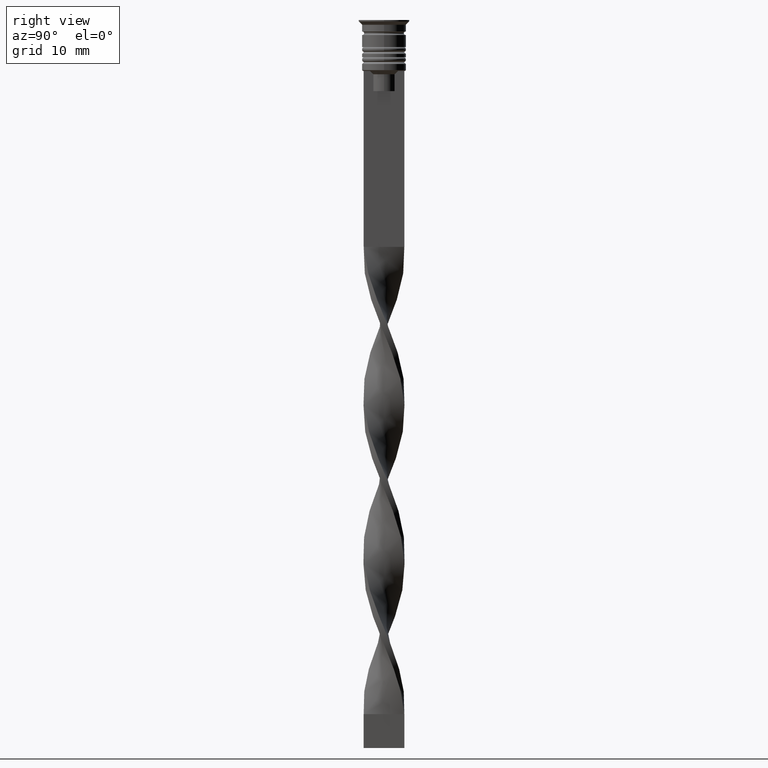
[diagram: clean part render]
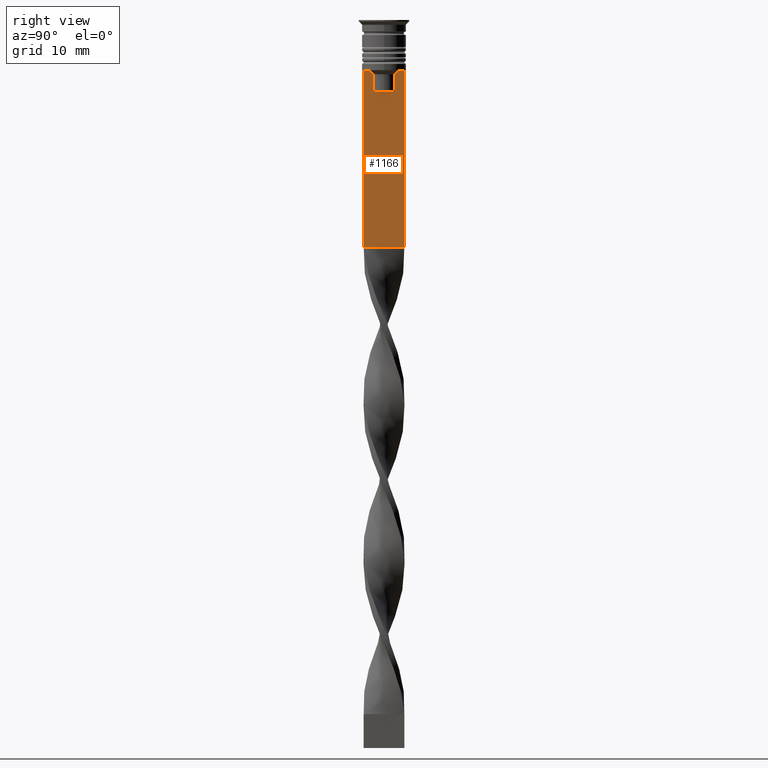
[diagram: same view with one face highlighted and labeled with its STEP entity id]
A machine part, right view. The second image highlights one B-rep face of the part: STEP entity #1166.
In plain terms, the highlighted planar face has unit normal (-1, 0, 0).
Its self-contained STEP definition (entity closure, byte-faithful):
#16 = CARTESIAN_POINT ( 'NONE',  ( 0.4999999999999998890, -3.000000000000000000, -7.500000000000000000 ) ) ;
#39 = CARTESIAN_POINT ( 'NONE',  ( 0.4999999999999998890, 1.918907889994530436, -7.667424704779945976 ) ) ;
#53 = VECTOR ( 'NONE', #298, 1000.000000000000000 ) ;
#60 = ORIENTED_EDGE ( 'NONE', *, *, #931, .T. ) ;
#69 = VERTEX_POINT ( 'NONE', #1990 ) ;
#90 = CARTESIAN_POINT ( 'NONE',  ( 0.4999999999999998890, -2.091052366632653481, -7.500000000000000000 ) ) ;
#148 = B_SPLINE_CURVE_WITH_KNOTS ( 'NONE', 3,
 ( #2374, #39, #1076, #3149 ),
 .UNSPECIFIED., .F., .F.,
 ( 4, 4 ),
 ( 0.003696428037903523069, 0.004416830248125226156 ),
 .UNSPECIFIED. ) ;
#215 = AXIS2_PLACEMENT_3D ( 'NONE', #2581, #3272, #984 ) ;
#226 = VECTOR ( 'NONE', #514, 1000.000000000000000 ) ;
#245 = CARTESIAN_POINT ( 'NONE',  ( 0.4999999999999998890, 3.000000000000000000, -33.50000000000000000 ) ) ;
#258 = ORIENTED_EDGE ( 'NONE', *, *, #785, .T. ) ;
#283 = CARTESIAN_POINT ( 'NONE',  ( 0.4999999999999998890, 1.572418519351642452, -10.49999999999999822 ) ) ;
#298 = DIRECTION ( 'NONE',  ( 0.000000000000000000, 0.000000000000000000, -1.000000000000000000 ) ) ;
#376 = VECTOR ( 'NONE', #824, 1000.000000000000000 ) ;
#411 = CARTESIAN_POINT ( 'NONE',  ( 0.4999999999999998890, -1.572418519351642452, -8.000000000000000000 ) ) ;
#455 = EDGE_CURVE ( 'NONE', #69, #2595, #498, .T. ) ;
#482 = CARTESIAN_POINT ( 'NONE',  ( 0.4999999999999998890, 1.572418519351642452, -8.000000000000000000 ) ) ;
#498 = LINE ( 'NONE', #2858, #2274 ) ;
#514 = DIRECTION ( 'NONE',  ( 0.000000000000000000, -1.000000000000000000, 0.000000000000000000 ) ) ;
#543 = VECTOR ( 'NONE', #2111, 1000.000000000000000 ) ;
#564 = ORIENTED_EDGE ( 'NONE', *, *, #3176, .T. ) ;
#746 = LINE ( 'NONE', #1008, #1582 ) ;
#785 = EDGE_CURVE ( 'NONE', #69, #2022, #2091, .T. ) ;
#808 = VERTEX_POINT ( 'NONE', #1616 ) ;
#824 = DIRECTION ( 'NONE',  ( 0.000000000000000000, 0.000000000000000000, -1.000000000000000000 ) ) ;
#843 = VERTEX_POINT ( 'NONE', #1603 ) ;
#856 = CARTESIAN_POINT ( 'NONE',  ( 0.4999999999999998890, -3.000000000000000000, -7.500000000000000000 ) ) ;
#931 = EDGE_CURVE ( 'NONE', #843, #1861, #2384, .T. ) ;
#952 = ORIENTED_EDGE ( 'NONE', *, *, #3004, .T. ) ;
#984 = DIRECTION ( 'NONE',  ( 0.000000000000000000, 0.000000000000000000, 1.000000000000000000 ) ) ;
#1008 = CARTESIAN_POINT ( 'NONE',  ( 0.4999999999999998890, -3.000000000000000000, -33.50000000000000000 ) ) ;
#1032 = CARTESIAN_POINT ( 'NONE',  ( 0.4999999999999998890, 1.572418519351642452, 0.000000000000000000 ) ) ;
#1037 = ORIENTED_EDGE ( 'NONE', *, *, #455, .F. ) ;
#1072 = LINE ( 'NONE', #856, #543 ) ;
#1076 = CARTESIAN_POINT ( 'NONE',  ( 0.4999999999999998890, 1.746261636039131870, -7.834330826581080487 ) ) ;
#1166 = ADVANCED_FACE ( 'NONE', ( #2240 ), #1221, .F. ) ;
#1221 = PLANE ( 'NONE',  #215 ) ;
#1404 = VERTEX_POINT ( 'NONE', #283 ) ;
#1450 = EDGE_CURVE ( 'NONE', #2943, #1404, #3103, .T. ) ;
#1570 = DIRECTION ( 'NONE',  ( 0.000000000000000000, 0.000000000000000000, -1.000000000000000000 ) ) ;
#1582 = VECTOR ( 'NONE', #2811, 1000.000000000000000 ) ;
#1597 = ORIENTED_EDGE ( 'NONE', *, *, #2375, .T. ) ;
#1603 = CARTESIAN_POINT ( 'NONE',  ( 0.4999999999999998890, -1.572418519351642452, -10.49999999999999822 ) ) ;
#1616 = CARTESIAN_POINT ( 'NONE',  ( 0.4999999999999998890, -3.000000000000000000, -7.500000000000000000 ) ) ;
#1627 = VECTOR ( 'NONE', #2652, 1000.000000000000000 ) ;
#1861 = VERTEX_POINT ( 'NONE', #411 ) ;
#1869 = CARTESIAN_POINT ( 'NONE',  ( 0.4999999999999998890, -1.572418519351642452, 0.000000000000000000 ) ) ;
#1888 = CARTESIAN_POINT ( 'NONE',  ( 0.4999999999999998890, -3.000000000000000000, -1.417237469701779329 ) ) ;
#1948 = EDGE_CURVE ( 'NONE', #3112, #808, #1072, .T. ) ;
#1987 = EDGE_CURVE ( 'NONE', #808, #3226, #2408, .T. ) ;
#1990 = CARTESIAN_POINT ( 'NONE',  ( 0.4999999999999998890, 3.000000000000000000, -7.500000000000000000 ) ) ;
#2001 = ORIENTED_EDGE ( 'NONE', *, *, #1948, .T. ) ;
#2022 = VERTEX_POINT ( 'NONE', #2422 ) ;
#2091 = LINE ( 'NONE', #16, #1627 ) ;
#2111 = DIRECTION ( 'NONE',  ( 0.000000000000000000, -1.000000000000000000, 0.000000000000000000 ) ) ;
#2119 = EDGE_CURVE ( 'NONE', #3226, #2595, #746, .T. ) ;
#2155 = ORIENTED_EDGE ( 'NONE', *, *, #1987, .T. ) ;
#2167 = VECTOR ( 'NONE', #2912, 1000.000000000000000 ) ;
#2240 = FACE_OUTER_BOUND ( 'NONE', #3105, .T. ) ;
#2274 = VECTOR ( 'NONE', #1570, 1000.000000000000000 ) ;
#2374 = CARTESIAN_POINT ( 'NONE',  ( 0.4999999999999998890, 2.091052366632653481, -7.500000000000000000 ) ) ;
#2375 = EDGE_CURVE ( 'NONE', #1861, #3112, #3353, .T. ) ;
#2384 = LINE ( 'NONE', #1869, #2167 ) ;
#2408 = LINE ( 'NONE', #1888, #376 ) ;
#2422 = CARTESIAN_POINT ( 'NONE',  ( 0.4999999999999998890, 2.091052366632653481, -7.500000000000000000 ) ) ;
#2464 = CARTESIAN_POINT ( 'NONE',  ( 0.4999999999999998890, -1.746240429054158660, -7.834351036433149673 ) ) ;
#2496 = CARTESIAN_POINT ( 'NONE',  ( 0.4999999999999998890, -2.091052366632653481, -7.500000000000000000 ) ) ;
#2566 = LINE ( 'NONE', #2848, #226 ) ;
#2571 = ORIENTED_EDGE ( 'NONE', *, *, #1450, .T. ) ;
#2581 = CARTESIAN_POINT ( 'NONE',  ( 0.4999999999999998890, -3.000000000000000000, -1.417237469701779329 ) ) ;
#2595 = VERTEX_POINT ( 'NONE', #245 ) ;
#2652 = DIRECTION ( 'NONE',  ( 0.000000000000000000, -1.000000000000000000, 0.000000000000000000 ) ) ;
#2746 = CARTESIAN_POINT ( 'NONE',  ( 0.4999999999999998890, -1.918909712772151721, -7.667422931978337353 ) ) ;
#2811 = DIRECTION ( 'NONE',  ( 0.000000000000000000, 1.000000000000000000, 0.000000000000000000 ) ) ;
#2848 = CARTESIAN_POINT ( 'NONE',  ( 0.4999999999999998890, 1.650000000000003464, -10.49999999999999822 ) ) ;
#2858 = CARTESIAN_POINT ( 'NONE',  ( 0.4999999999999998890, 3.000000000000000000, -1.417237469701779329 ) ) ;
#2912 = DIRECTION ( 'NONE',  ( -0.000000000000000000, -0.000000000000000000, 1.000000000000000000 ) ) ;
#2943 = VERTEX_POINT ( 'NONE', #482 ) ;
#3004 = EDGE_CURVE ( 'NONE', #1404, #843, #2566, .T. ) ;
#3007 = ORIENTED_EDGE ( 'NONE', *, *, #2119, .T. ) ;
#3041 = CARTESIAN_POINT ( 'NONE',  ( 0.4999999999999998890, -3.000000000000000000, -33.50000000000000000 ) ) ;
#3103 = LINE ( 'NONE', #1032, #53 ) ;
#3105 = EDGE_LOOP ( 'NONE', ( #258, #564, #2571, #952, #60, #1597, #2001, #2155, #3007, #1037 ) ) ;
#3112 = VERTEX_POINT ( 'NONE', #90 ) ;
#3149 = CARTESIAN_POINT ( 'NONE',  ( 0.4999999999999998890, 1.572418519351642452, -8.000000000000000000 ) ) ;
#3176 = EDGE_CURVE ( 'NONE', #2022, #2943, #148, .T. ) ;
#3226 = VERTEX_POINT ( 'NONE', #3041 ) ;
#3239 = CARTESIAN_POINT ( 'NONE',  ( 0.4999999999999998890, -1.572418519351642452, -8.000000000000000000 ) ) ;
#3272 = DIRECTION ( 'NONE',  ( -1.000000000000000000, 0.000000000000000000, 0.000000000000000000 ) ) ;
#3353 = B_SPLINE_CURVE_WITH_KNOTS ( 'NONE', 3,
 ( #3239, #2464, #2746, #2496 ),
 .UNSPECIFIED., .F., .F.,
 ( 4, 4 ),
 ( 0.008356915209744729747, 0.009073319521387651632 ),
 .UNSPECIFIED. ) ;